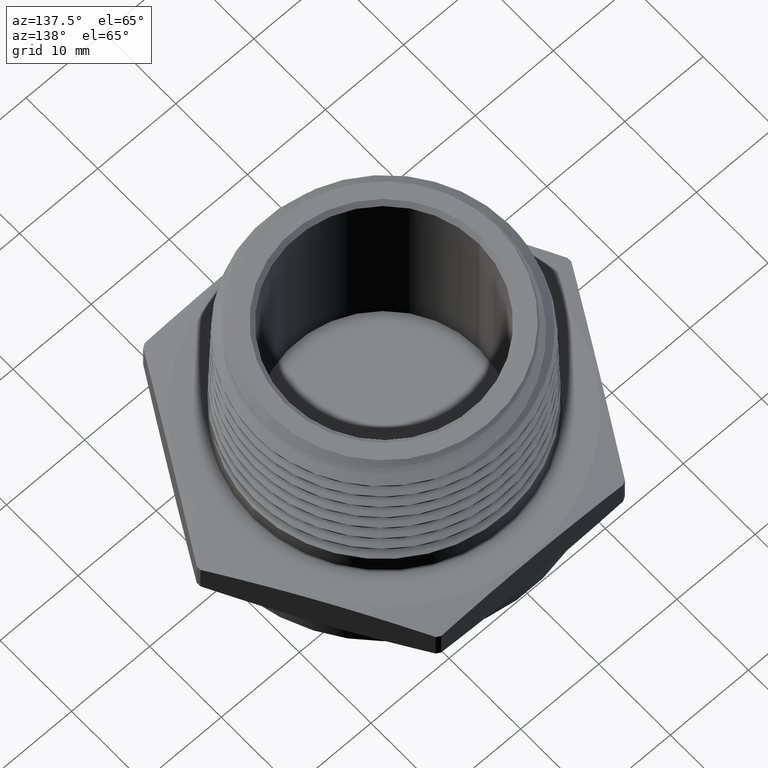
[diagram: clean part render]
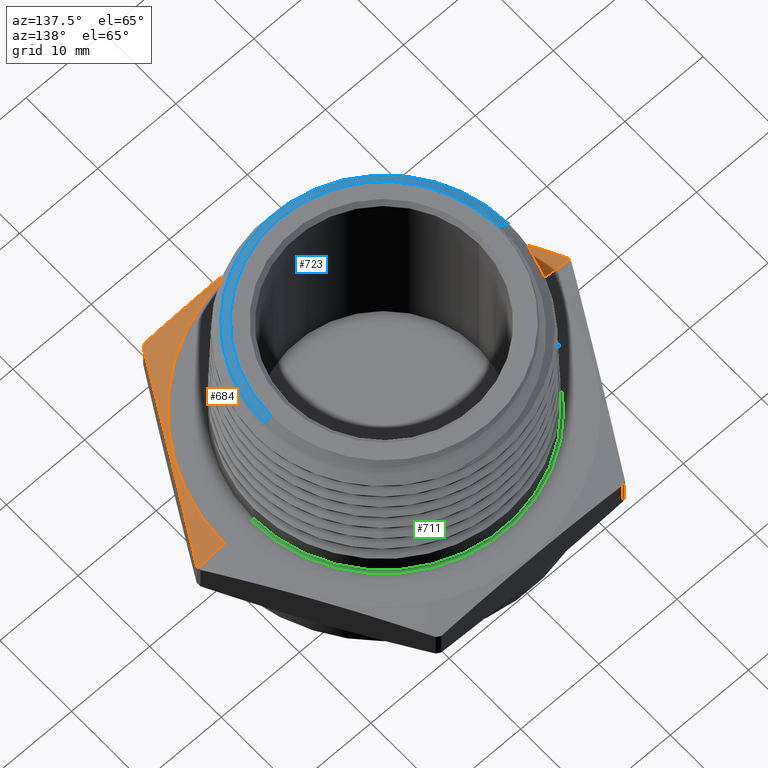
[diagram: same view with three faces highlighted in distinct colors, each labeled with its STEP entity id]
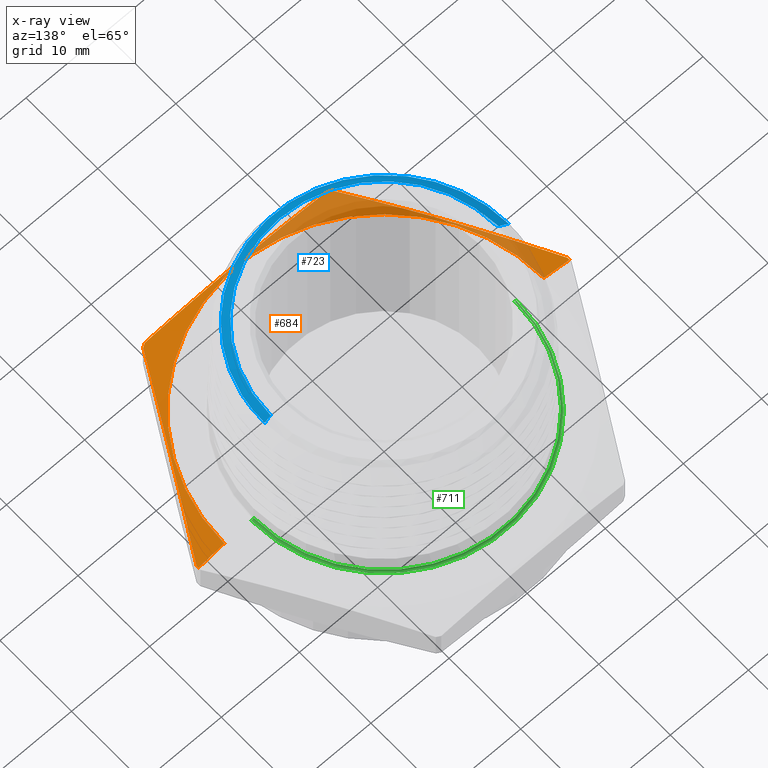
[diagram: x-ray of the same camera — body ghosted, the three highlighted faces saturated]
A machine part, auxiliary view with three faces highlighted in distinct colors.
The next image is the same camera in x-ray (body ghosted, the three faces saturated) — at least one of them is partly hidden behind the body in this view.
Their STEP definitions:

[orange] entity #684 — the highlighted conical surface has half-angle 78 deg.
#684 = ADVANCED_FACE ( 'NONE', ( #4577 ), #4584, .T. ) ;
#786 = EDGE_CURVE ( 'NONE', #1581, #1673, #6011, .T. ) ;
#800 = EDGE_CURVE ( 'NONE', #1583, #1581, #6027, .T. ) ;
#887 = EDGE_CURVE ( 'NONE', #1628, #1673, #6104, .T. ) ;
#898 = EDGE_CURVE ( 'NONE', #2399, #2366, #5932, .T. ) ;
#899 = EDGE_CURVE ( 'NONE', #2362, #1578, #5933, .T. ) ;
#900 = EDGE_CURVE ( 'NONE', #2365, #1628, #5934, .T. ) ;
#907 = EDGE_CURVE ( 'NONE', #2389, #2399, #6123, .T. ) ;
#910 = EDGE_CURVE ( 'NONE', #2366, #2362, #6128, .T. ) ;
#929 = AXIS2_PLACEMENT_3D ( 'NONE', #6619, #6639, #6666 ) ;
#999 = AXIS2_PLACEMENT_3D ( 'NONE', #5837, #5838, #5839 ) ;
#1393 = CARTESIAN_POINT ( 'NONE',  ( -0.4584226893032063400, -0.8149999999999997200, 0.1723504429143089300 ) ) ;
#1396 = CARTESIAN_POINT ( 'NONE',  ( -0.8049999999999998300, 0.0000000000000000000, 0.2000000000000000100 ) ) ;
#1398 = CARTESIAN_POINT ( 'NONE',  ( 0.8049999999999998300, 9.858406733136191200E-017, 0.1999999999999998200 ) ) ;
#1409 = CARTESIAN_POINT ( 'NONE',  ( 0.8049999999999998300, 9.858406733136191200E-017, 0.1999999999999998200 ) ) ;
#1417 = CARTESIAN_POINT ( 'NONE',  ( -0.9350220487359204300, -0.01049430539224296300, 0.1723504429143089500 ) ) ;
#1431 = CARTESIAN_POINT ( 'NONE',  ( -0.9350809387790897100, 0.0000000000000000000, 0.1723504429143089500 ) ) ;
#1433 = DIRECTION ( 'NONE',  ( 0.9781476007338069100, 1.197885328332319900E-016, -0.2079116908177528500 ) ) ;
#1442 = CARTESIAN_POINT ( 'NONE',  ( 0.4584226893032063400, -0.8149999999999997200, 0.1723504429143087900 ) ) ;
#1445 = CARTESIAN_POINT ( 'NONE',  ( -0.4765993594327140900, -0.8045056946077573400, 0.1723504429143089300 ) ) ;
#1446 = CARTESIAN_POINT ( 'NONE',  ( 0.4765993594327142000, -0.8045056946077573400, 0.1723504429143087900 ) ) ;
#1466 = CARTESIAN_POINT ( 'NONE',  ( 0.9350809387790897100, 1.145143878619514100E-016, 0.1723504429143087600 ) ) ;
#1476 = CARTESIAN_POINT ( 'NONE',  ( 0.9350220487359204300, -0.01049430539224262100, 0.1723504429143087600 ) ) ;
#1512 = CARTESIAN_POINT ( 'NONE',  ( 2.162974873910929900E-017, 0.0000000000000000000, 0.1723504429143088700 ) ) ;
#1513 = DIRECTION ( 'NONE',  ( -1.254986547952384500E-016, -0.0000000000000000000, -1.000000000000000000 ) ) ;
#1514 = DIRECTION ( 'NONE',  ( -1.000000000000000000, 0.0000000000000000000, 1.095566121753788100E-016 ) ) ;
#1578 = VERTEX_POINT ( 'NONE', #1393 ) ;
#1581 = VERTEX_POINT ( 'NONE', #1396 ) ;
#1583 = VERTEX_POINT ( 'NONE', #1398 ) ;
#1628 = VERTEX_POINT ( 'NONE', #1417 ) ;
#1673 = VERTEX_POINT ( 'NONE', #1431 ) ;
#2308 = AXIS2_PLACEMENT_3D ( 'NONE', #3139, #3140, #3141 ) ;
#2316 = AXIS2_PLACEMENT_3D ( 'NONE', #3232, #3233, #3234 ) ;
#2317 = AXIS2_PLACEMENT_3D ( 'NONE', #3240, #3241, #3242 ) ;
#2329 = AXIS2_PLACEMENT_3D ( 'NONE', #1512, #1513, #1514 ) ;
#2345 = EDGE_CURVE ( 'NONE', #1583, #2389, #6161, .T. ) ;
#2362 = VERTEX_POINT ( 'NONE', #1442 ) ;
#2365 = VERTEX_POINT ( 'NONE', #1445 ) ;
#2366 = VERTEX_POINT ( 'NONE', #1446 ) ;
#2389 = VERTEX_POINT ( 'NONE', #1466 ) ;
#2399 = VERTEX_POINT ( 'NONE', #1476 ) ;
#3139 = CARTESIAN_POINT ( 'NONE',  ( 2.162974873910929900E-017, 0.0000000000000000000, 0.1723504429143088700 ) ) ;
#3140 = DIRECTION ( 'NONE',  ( -1.254986547952384500E-016, -0.0000000000000000000, -1.000000000000000000 ) ) ;
#3141 = DIRECTION ( 'NONE',  ( -1.000000000000000000, 0.0000000000000000000, 1.095566121753788100E-016 ) ) ;
#3173 = CARTESIAN_POINT ( 'NONE',  ( 0.8586182671853862500, -0.1428295369281616700, 0.1867569098631995100 ) ) ;
#3181 = CARTESIAN_POINT ( 'NONE',  ( 0.3821825396903712500, -0.8149999999999997200, 0.1802951000004681100 ) ) ;
#3190 = CARTESIAN_POINT ( 'NONE',  ( 0.3059085874836962000, -0.8149999999999997200, 0.1867333030325142000 ) ) ;
#3191 = CARTESIAN_POINT ( 'NONE',  ( 0.8968201579606535100, -0.07666192116020210900, 0.1803121513787767600 ) ) ;
#3192 = CARTESIAN_POINT ( 'NONE',  ( 0.9350220487359204300, -0.01049430539224262100, 0.1723504429143087600 ) ) ;
#3193 = CARTESIAN_POINT ( 'NONE',  ( 0.7822144856348515200, -0.2751647684640808300, 0.1955505306662885200 ) ) ;
#3194 = CARTESIAN_POINT ( 'NONE',  ( 0.7058107040843174500, -0.4074999999999997000, 0.2001983381003107400 ) ) ;
#3195 = CARTESIAN_POINT ( 'NONE',  ( 0.6294069225337828300, -0.5398352315359189500, 0.1955505306662886400 ) ) ;
#3196 = CARTESIAN_POINT ( 'NONE',  ( 0.5530031409832486500, -0.6721704630718381400, 0.1867569098631996800 ) ) ;
#3197 = CARTESIAN_POINT ( 'NONE',  ( 0.5148012502079814000, -0.7383380788397977400, 0.1803121513787768200 ) ) ;
#3198 = CARTESIAN_POINT ( 'NONE',  ( 0.4765993594327142000, -0.8045056946077573400, 0.1723504429143087900 ) ) ;
#3199 = CARTESIAN_POINT ( 'NONE',  ( -0.5148012502079814000, -0.7383380788397977400, 0.1803121513787769900 ) ) ;
#3200 = CARTESIAN_POINT ( 'NONE',  ( 0.4584226893032063400, -0.8149999999999997200, 0.1723504429143087900 ) ) ;
#3201 = CARTESIAN_POINT ( 'NONE',  ( -0.5530031409832485400, -0.6721704630718383600, 0.1867569098631996800 ) ) ;
#3202 = CARTESIAN_POINT ( 'NONE',  ( 0.1532691551096953300, -0.8149999999999996100, 0.1955306532691248300 ) ) ;
#3203 = CARTESIAN_POINT ( 'NONE',  ( 0.07690311260575342900, -0.8149999999999996100, 0.1978647392526785800 ) ) ;
#3204 = CARTESIAN_POINT ( 'NONE',  ( -0.07593328554225364800, -0.8149999999999995000, 0.1978840681878027100 ) ) ;
#3205 = CARTESIAN_POINT ( 'NONE',  ( -0.1524036573554993200, -0.8149999999999999500, 0.1955685905400196500 ) ) ;
#3206 = CARTESIAN_POINT ( 'NONE',  ( -0.3054378654914723400, -0.8149999999999996100, 0.1867722747430926900 ) ) ;
#3207 = CARTESIAN_POINT ( 'NONE',  ( -0.3820727360291162900, -0.8149999999999996100, 0.1803065421663073400 ) ) ;
#3208 = CARTESIAN_POINT ( 'NONE',  ( -0.4584226893032063400, -0.8149999999999997200, 0.1723504429143089300 ) ) ;
#3210 = CARTESIAN_POINT ( 'NONE',  ( -0.4765993594327140900, -0.8045056946077573400, 0.1723504429143089300 ) ) ;
#3212 = CARTESIAN_POINT ( 'NONE',  ( -0.6294069225337829400, -0.5398352315359192800, 0.1955505306662888000 ) ) ;
#3213 = CARTESIAN_POINT ( 'NONE',  ( -0.7058107040843174500, -0.4075000000000003600, 0.2001983381003110100 ) ) ;
#3214 = CARTESIAN_POINT ( 'NONE',  ( -0.7822144856348517400, -0.2751647684640809400, 0.1955505306662887500 ) ) ;
#3215 = CARTESIAN_POINT ( 'NONE',  ( -0.8586182671853861400, -0.1428295369281619400, 0.1867569098631997600 ) ) ;
#3216 = CARTESIAN_POINT ( 'NONE',  ( -0.8968201579606531700, -0.07666192116020245600, 0.1803121513787769000 ) ) ;
#3217 = CARTESIAN_POINT ( 'NONE',  ( -0.9350220487359204300, -0.01049430539224296300, 0.1723504429143089500 ) ) ;
#3232 = CARTESIAN_POINT ( 'NONE',  ( 2.162974873910929900E-017, 0.0000000000000000000, 0.1723504429143088700 ) ) ;
#3233 = DIRECTION ( 'NONE',  ( -1.254986547952384500E-016, -0.0000000000000000000, -1.000000000000000000 ) ) ;
#3234 = DIRECTION ( 'NONE',  ( -1.000000000000000000, 0.0000000000000000000, 1.095566121753788100E-016 ) ) ;
#3240 = CARTESIAN_POINT ( 'NONE',  ( 2.162974873910929900E-017, 0.0000000000000000000, 0.1723504429143088700 ) ) ;
#3241 = DIRECTION ( 'NONE',  ( -1.254986547952384500E-016, -0.0000000000000000000, -1.000000000000000000 ) ) ;
#3242 = DIRECTION ( 'NONE',  ( -1.000000000000000000, 0.0000000000000000000, 1.095566121753788100E-016 ) ) ;
#4341 = EDGE_LOOP ( 'NONE', ( #4512, #4513, #4514, #4515, #4516, #4517, #4502, #4503, #4504, #4505 ) ) ;
#4502 = ORIENTED_EDGE ( 'NONE', *, *, #899, .F. ) ;
#4503 = ORIENTED_EDGE ( 'NONE', *, *, #910, .F. ) ;
#4504 = ORIENTED_EDGE ( 'NONE', *, *, #898, .F. ) ;
#4505 = ORIENTED_EDGE ( 'NONE', *, *, #907, .F. ) ;
#4512 = ORIENTED_EDGE ( 'NONE', *, *, #2345, .F. ) ;
#4513 = ORIENTED_EDGE ( 'NONE', *, *, #800, .T. ) ;
#4514 = ORIENTED_EDGE ( 'NONE', *, *, #786, .T. ) ;
#4515 = ORIENTED_EDGE ( 'NONE', *, *, #887, .F. ) ;
#4516 = ORIENTED_EDGE ( 'NONE', *, *, #900, .F. ) ;
#4517 = ORIENTED_EDGE ( 'NONE', *, *, #6430, .F. ) ;
#4577 = FACE_OUTER_BOUND ( 'NONE', #4341, .T. ) ;
#4584 = CONICAL_SURFACE ( 'NONE', #929, 0.8049999999999998300, 1.361356816555583800 ) ;
#5686 = DIRECTION ( 'NONE',  ( -0.9781476007338071300, 0.0000000000000000000, -0.2079116908177526300 ) ) ;
#5687 = CARTESIAN_POINT ( 'NONE',  ( -0.8049999999999998300, 0.0000000000000000000, 0.2000000000000000100 ) ) ;
#5837 = CARTESIAN_POINT ( 'NONE',  ( 2.509973095904768000E-017, 0.0000000000000000000, 0.1999999999999999300 ) ) ;
#5838 = DIRECTION ( 'NONE',  ( -1.254986547952384500E-016, -0.0000000000000000000, -1.000000000000000000 ) ) ;
#5839 = DIRECTION ( 'NONE',  ( -1.000000000000000000, 0.0000000000000000000, 1.272599997048570100E-016 ) ) ;
#5932 = B_SPLINE_CURVE_WITH_KNOTS ( 'NONE', 3,
 ( #3192, #3191, #3173, #3193, #3194, #3195, #3196, #3197, #3198 ),
 .UNSPECIFIED., .F., .F.,
 ( 4, 2, 1, 2, 4 ),
 ( 1.919160924749535500E-006, 0.005823887315075467300, 0.01164585546922618400, 0.01746782362337690300, 0.02328979177752761900 ),
 .UNSPECIFIED. ) ;
#5933 = B_SPLINE_CURVE_WITH_KNOTS ( 'NONE', 3,
 ( #3200, #3181, #3190, #3202, #3203, #3204, #3205, #3206, #3207, #3208 ),
 .UNSPECIFIED., .F., .F.,
 ( 4, 2, 2, 2, 4 ),
 ( 0.04548648765936419400, 0.05132590599875511100, 0.05716532433814602900, 0.06300474267753694600, 0.06884416101692786300 ),
 .UNSPECIFIED. ) ;
#5934 = B_SPLINE_CURVE_WITH_KNOTS ( 'NONE', 3,
 ( #3210, #3199, #3201, #3212, #3213, #3214, #3215, #3216, #3217 ),
 .UNSPECIFIED., .F., .F.,
 ( 4, 2, 1, 2, 4 ),
 ( 1.919160924773306300E-006, 0.005823887315075492400, 0.01164585546922621200, 0.01746782362337692700, 0.02328979177752764000 ),
 .UNSPECIFIED. ) ;
#6011 = LINE ( 'NONE', #5687, #6014 ) ;
#6014 = VECTOR ( 'NONE', #5686, 39.37007874015748900 ) ;
#6027 = CIRCLE ( 'NONE', #999, 0.8049999999999998300 ) ;
#6104 = CIRCLE ( 'NONE', #2308, 0.9350809387790897100 ) ;
#6123 = CIRCLE ( 'NONE', #2316, 0.9350809387790897100 ) ;
#6128 = CIRCLE ( 'NONE', #2317, 0.9350809387790897100 ) ;
#6157 = CIRCLE ( 'NONE', #2329, 0.9350809387790897100 ) ;
#6160 = VECTOR ( 'NONE', #1433, 39.37007874015748100 ) ;
#6161 = LINE ( 'NONE', #1409, #6160 ) ;
#6430 = EDGE_CURVE ( 'NONE', #1578, #2365, #6157, .T. ) ;
#6619 = CARTESIAN_POINT ( 'NONE',  ( 2.509973095904768000E-017, 0.0000000000000000000, 0.1999999999999999300 ) ) ;
#6639 = DIRECTION ( 'NONE',  ( -1.254986547952384500E-016, -0.0000000000000000000, -1.000000000000000000 ) ) ;
#6666 = DIRECTION ( 'NONE',  ( -1.000000000000000000, 0.0000000000000000000, 1.272599997048570100E-016 ) ) ;

[blue] entity #723 — the highlighted conical surface has half-angle 45 deg.
#723 = ADVANCED_FACE ( 'NONE', ( #5961 ), #5966, .T. ) ;
#787 = EDGE_CURVE ( 'NONE', #1595, #2393, #6012, .T. ) ;
#792 = EDGE_CURVE ( 'NONE', #2393, #1648, #6018, .T. ) ;
#838 = EDGE_CURVE ( 'NONE', #2359, #2358, #6069, .T. ) ;
#858 = EDGE_CURVE ( 'NONE', #1595, #1579, #6083, .T. ) ;
#865 = EDGE_CURVE ( 'NONE', #1648, #1619, #5917, .T. ) ;
#869 = EDGE_CURVE ( 'NONE', #2358, #1579, #5919, .T. ) ;
#882 = EDGE_CURVE ( 'NONE', #1619, #2359, #5927, .T. ) ;
#965 = AXIS2_PLACEMENT_3D ( 'NONE', #1805, #1806, #1804 ) ;
#994 = AXIS2_PLACEMENT_3D ( 'NONE', #5695, #5696, #5697 ) ;
#1394 = CARTESIAN_POINT ( 'NONE',  ( 0.6003489249177894600, -6.949758934786900800E-016, 0.9616510750822108200 ) ) ;
#1410 = CARTESIAN_POINT ( 'NONE',  ( 0.5719999999999999500, 7.351925070738972600E-017, 0.9900000000000001000 ) ) ;
#1412 = CARTESIAN_POINT ( 'NONE',  ( -0.5655597257416159500, -0.09229614794504099900, 0.9889424822193903000 ) ) ;
#1428 = CARTESIAN_POINT ( 'NONE',  ( -0.5731157824945870600, -6.402768735150616600E-017, 0.9888842175054131100 ) ) ;
#1438 = CARTESIAN_POINT ( 'NONE',  ( -0.6283225450993634700, 4.889100257645360200E-013, 0.9336774549006378000 ) ) ;
#1439 = CARTESIAN_POINT ( 'NONE',  ( -0.5782752292204643700, 3.274842165956694300E-013, 0.9837247707795356800 ) ) ;
#1470 = CARTESIAN_POINT ( 'NONE',  ( -0.5719999999999999500, 0.0000000000000000000, 0.9900000000000001000 ) ) ;
#1579 = VERTEX_POINT ( 'NONE', #1394 ) ;
#1595 = VERTEX_POINT ( 'NONE', #1410 ) ;
#1619 = VERTEX_POINT ( 'NONE', #1412 ) ;
#1648 = VERTEX_POINT ( 'NONE', #1428 ) ;
#1804 = DIRECTION ( 'NONE',  ( -1.000000000000000000, 0.0000000000000000000, 0.0000000000000000000 ) ) ;
#1805 = CARTESIAN_POINT ( 'NONE',  ( 0.0000000000000000000, 0.0000000000000000000, 0.9027971720943880300 ) ) ;
#1806 = DIRECTION ( 'NONE',  ( -0.0000000000000000000, -0.0000000000000000000, -1.000000000000000000 ) ) ;
#1988 = DIRECTION ( 'NONE',  ( -0.7071067811865516800, 0.0000000000000000000, -0.7071067811865433500 ) ) ;
#2358 = VERTEX_POINT ( 'NONE', #1438 ) ;
#2359 = VERTEX_POINT ( 'NONE', #1439 ) ;
#2393 = VERTEX_POINT ( 'NONE', #1470 ) ;
#2562 = CARTESIAN_POINT ( 'NONE',  ( 0.6592028279056131300, 8.072906331834926900E-017, 0.9027971720943880300 ) ) ;
#2564 = DIRECTION ( 'NONE',  ( 0.7071067811865516800, 8.659560562354983400E-017, -0.7071067811865433500 ) ) ;
#2702 = CARTESIAN_POINT ( 'NONE',  ( -0.5730966348480071000, -0.03089783283064754000, 0.9889033651519929500 ) ) ;
#2704 = CARTESIAN_POINT ( 'NONE',  ( -0.5705498541855827900, -0.06177772625082884200, 0.9889490450932203500 ) ) ;
#2708 = CARTESIAN_POINT ( 'NONE',  ( -0.5731157824945870600, -6.402768735150616600E-017, 0.9888842175054131100 ) ) ;
#2709 = CARTESIAN_POINT ( 'NONE',  ( -0.5655597257416159500, -0.09229614794504099900, 0.9889424822193903000 ) ) ;
#2763 = CARTESIAN_POINT ( 'NONE',  ( -0.6283225450993634700, 4.889100257645360200E-013, 0.9336774549006378000 ) ) ;
#2764 = CARTESIAN_POINT ( 'NONE',  ( -0.6277517758621208300, -0.04027582084507674200, 0.9342482241379113100 ) ) ;
#2769 = CARTESIAN_POINT ( 'NONE',  ( -0.6233480830329850600, -0.08014557814971956500, 0.9348149424751737200 ) ) ;
#2770 = CARTESIAN_POINT ( 'NONE',  ( -0.6109628710005069500, -0.1393376951686519600, 0.9356739183522404500 ) ) ;
#2771 = CARTESIAN_POINT ( 'NONE',  ( -0.6058293096666554900, -0.1590543596057914200, 0.9359641750060462300 ) ) ;
#2772 = CARTESIAN_POINT ( 'NONE',  ( -0.5937880551024561400, -0.1975470601095226400, 0.9365381644293960800 ) ) ;
#2773 = CARTESIAN_POINT ( 'NONE',  ( -0.5868766730029015800, -0.2163859120718263100, 0.9368227733415664900 ) ) ;
#2774 = CARTESIAN_POINT ( 'NONE',  ( -0.5635223193491110100, -0.2717036580411116300, 0.9376778298871606400 ) ) ;
#2775 = CARTESIAN_POINT ( 'NONE',  ( -0.5444854407597095000, -0.3069957986820049400, 0.9382480025577218900 ) ) ;
#2776 = CARTESIAN_POINT ( 'NONE',  ( -0.4991859951343103300, -0.3742739245220694200, 0.9394059372103544800 ) ) ;
#2777 = CARTESIAN_POINT ( 'NONE',  ( -0.4735669051513973200, -0.4052717388882183200, 0.9399795319078250200 ) ) ;
#2778 = CARTESIAN_POINT ( 'NONE',  ( -0.4310758478532629200, -0.4476774968469127100, 0.9408388337412817400 ) ) ;
#2779 = CARTESIAN_POINT ( 'NONE',  ( -0.4162177585189426600, -0.4611418698714350200, 0.9411268315815687300 ) ) ;
#2780 = CARTESIAN_POINT ( 'NONE',  ( -0.3850861814523969800, -0.4867031851660435500, 0.9417050683721123200 ) ) ;
#2781 = CARTESIAN_POINT ( 'NONE',  ( -0.3687243612530317600, -0.4988518635010457100, 0.9419966363922811500 ) ) ;
#2782 = CARTESIAN_POINT ( 'NONE',  ( -0.3184373044608903000, -0.5324963997328863200, 0.9428650624131593700 ) ) ;
#2783 = CARTESIAN_POINT ( 'NONE',  ( -0.2831535357971129400, -0.5514069717100014100, 0.9434394358872902900 ) ) ;
#2784 = CARTESIAN_POINT ( 'NONE',  ( -0.2276288004168912400, -0.5745728427568143100, 0.9443053165515038500 ) ) ;
#2785 = CARTESIAN_POINT ( 'NONE',  ( -0.2086836797567931100, -0.5814206918121095400, 0.9445962341854592400 ) ) ;
#2786 = CARTESIAN_POINT ( 'NONE',  ( -0.1698892500044497400, -0.5933072999798222300, 0.9451820199975604600 ) ) ;
#2787 = CARTESIAN_POINT ( 'NONE',  ( -0.1503206900692913800, -0.5982578054319714900, 0.9454724724592916700 ) ) ;
#2788 = CARTESIAN_POINT ( 'NONE',  ( -0.09131615818067703700, -0.6101697598103217300, 0.9463412480107558100 ) ) ;
#2789 = CARTESIAN_POINT ( 'NONE',  ( -0.05149637765103051700, -0.6142455323130724400, 0.9469188464212262600 ) ) ;
#2790 = CARTESIAN_POINT ( 'NONE',  ( 0.008969497855882593900, -0.6144711064270754800, 0.9477939790444799300 ) ) ;
#2791 = CARTESIAN_POINT ( 'NONE',  ( 0.02933292363918173600, -0.6135398422460856000, 0.9480900178801532400 ) ) ;
#2792 = CARTESIAN_POINT ( 'NONE',  ( 0.06945847677378355600, -0.6097120950829829600, 0.9486752682305790200 ) ) ;
#2793 = CARTESIAN_POINT ( 'NONE',  ( 0.08930889642799985700, -0.6068242229662982300, 0.9489655639770607800 ) ) ;
#2794 = CARTESIAN_POINT ( 'NONE',  ( 0.1482344998597525900, -0.5952914823425040600, 0.9498370897720905800 ) ) ;
#2795 = CARTESIAN_POINT ( 'NONE',  ( 0.1867641360576805200, -0.5837751543597344800, 0.9504205957239940700 ) ) ;
#2796 = CARTESIAN_POINT ( 'NONE',  ( 0.2617832771830152500, -0.5529020988062745000, 0.9516015158549675500 ) ) ;
#2797 = CARTESIAN_POINT ( 'NONE',  ( 0.2971599183001777400, -0.5340163965697467500, 0.9521850222044372400 ) ) ;
#2798 = CARTESIAN_POINT ( 'NONE',  ( 0.3471400199448005400, -0.5006996237951694100, 0.9530619889598989100 ) ) ;
#2799 = CARTESIAN_POINT ( 'NONE',  ( 0.3632812365888978800, -0.4887551486029178000, 0.9533561508519832200 ) ) ;
#2800 = CARTESIAN_POINT ( 'NONE',  ( 0.3945002952906038200, -0.4631467876590605300, 0.9539474423492853000 ) ) ;
#2801 = CARTESIAN_POINT ( 'NONE',  ( 0.4095851848783071400, -0.4494567421635250500, 0.9542447393142933200 ) ) ;
#2802 = CARTESIAN_POINT ( 'NONE',  ( 0.4522186291113642900, -0.4067070071224613300, 0.9551288779894944200 ) ) ;
#2803 = CARTESIAN_POINT ( 'NONE',  ( 0.4775363340974048700, -0.3757079295430508800, 0.9557143765499338500 ) ) ;
#2804 = CARTESIAN_POINT ( 'NONE',  ( 0.5108653987642053400, -0.3254682437435644800, 0.9565999273501771800 ) ) ;
#2805 = CARTESIAN_POINT ( 'NONE',  ( 0.5212408773791902300, -0.3079999082411368200, 0.9568993385211102000 ) ) ;
#2806 = CARTESIAN_POINT ( 'NONE',  ( 0.5401240285679785900, -0.2722155197896826100, 0.9574951859203406600 ) ) ;
#2807 = CARTESIAN_POINT ( 'NONE',  ( 0.5486010273752680600, -0.2539835445915213400, 0.9577902505720044000 ) ) ;
#2808 = CARTESIAN_POINT ( 'NONE',  ( 0.5712131112562385300, -0.1982947693048976200, 0.9586758693884429600 ) ) ;
#2809 = CARTESIAN_POINT ( 'NONE',  ( 0.5825591086343430100, -0.1598555971027393300, 0.9592651233446652900 ) ) ;
#2810 = CARTESIAN_POINT ( 'NONE',  ( 0.5937895112420824600, -0.1001582436748347000, 0.9601630132861220800 ) ) ;
#2811 = CARTESIAN_POINT ( 'NONE',  ( 0.5965234745108145600, -0.08005636094698556600, 0.9604637476984322400 ) ) ;
#2812 = CARTESIAN_POINT ( 'NONE',  ( 0.5999430441952849900, -0.04002742803732163600, 0.9610587070802371100 ) ) ;
#2813 = CARTESIAN_POINT ( 'NONE',  ( 0.6006457612034900000, -0.02001344833519148900, 0.9613542387965102700 ) ) ;
#2814 = CARTESIAN_POINT ( 'NONE',  ( 0.6003489249177894600, -6.949758934786900800E-016, 0.9616510750822108200 ) ) ;
#3102 = CARTESIAN_POINT ( 'NONE',  ( -0.5723509295740140100, -0.06172517563396573400, 0.9871798708326928700 ) ) ;
#3103 = CARTESIAN_POINT ( 'NONE',  ( -0.5655597257416159500, -0.09229614794504099900, 0.9889424822193903000 ) ) ;
#3110 = CARTESIAN_POINT ( 'NONE',  ( -0.5765482343063121900, -0.03095631150653031100, 0.9854517656937054100 ) ) ;
#3111 = CARTESIAN_POINT ( 'NONE',  ( -0.5782752292204643700, 3.274842165956694300E-013, 0.9837247707795356800 ) ) ;
#4355 = EDGE_LOOP ( 'NONE', ( #4448, #4451, #4450, #4453, #4452, #4455, #4454 ) ) ;
#4448 = ORIENTED_EDGE ( 'NONE', *, *, #858, .F. ) ;
#4450 = ORIENTED_EDGE ( 'NONE', *, *, #792, .T. ) ;
#4451 = ORIENTED_EDGE ( 'NONE', *, *, #787, .T. ) ;
#4452 = ORIENTED_EDGE ( 'NONE', *, *, #882, .T. ) ;
#4453 = ORIENTED_EDGE ( 'NONE', *, *, #865, .T. ) ;
#4454 = ORIENTED_EDGE ( 'NONE', *, *, #869, .T. ) ;
#4455 = ORIENTED_EDGE ( 'NONE', *, *, #838, .T. ) ;
#4906 = CARTESIAN_POINT ( 'NONE',  ( -0.6592028279056131300, 0.0000000000000000000, 0.9027971720943880300 ) ) ;
#5695 = CARTESIAN_POINT ( 'NONE',  ( 0.0000000000000000000, 0.0000000000000000000, 0.9900000000000001000 ) ) ;
#5696 = DIRECTION ( 'NONE',  ( -0.0000000000000000000, -0.0000000000000000000, -1.000000000000000000 ) ) ;
#5697 = DIRECTION ( 'NONE',  ( -1.000000000000000000, 0.0000000000000000000, 0.0000000000000000000 ) ) ;
#5800 = CARTESIAN_POINT ( 'NONE',  ( -0.6592028279056131300, 0.0000000000000000000, 0.9027971720943880300 ) ) ;
#5801 = DIRECTION ( 'NONE',  ( -0.7071067811865516800, 0.0000000000000000000, -0.7071067811865433500 ) ) ;
#5917 = B_SPLINE_CURVE_WITH_KNOTS ( 'NONE', 3,
 ( #2708, #2702, #2704, #2709 ),
 .UNSPECIFIED., .F., .F.,
 ( 4, 4 ),
 ( 0.001243514361797862100, 0.003600094283229087600 ),
 .UNSPECIFIED. ) ;
#5919 = B_SPLINE_CURVE_WITH_KNOTS ( 'NONE', 3,
 ( #2763, #2764, #2769, #2770, #2771, #2772, #2773, #2774, #2775, #2776, #2777, #2778, #2779, #2780, #2781, #2782, #2783, #2784, #2785, #2786, #2787, #2788, #2789, #2790, #2791, #2792, #2793, #2794, #2795, #2796, #2797, #2798, #2799, #2800, #2801, #2802, #2803, #2804, #2805, #2806, #2807, #2808, #2809, #2810, #2811, #2812, #2813, #2814 ),
 .UNSPECIFIED., .F., .F.,
 ( 4, 2, 2, 2, 2, 2, 2, 2, 2, 2, 2, 2, 2, 2, 2, 2, 2, 2, 2, 2, 2, 2, 2, 4 ),
 ( 0.02647951359839826800, 0.02954731246858421900, 0.03108121190367719300, 0.03261511133877017400, 0.03568291020895612100, 0.03875070907914206200, 0.04028460851423503600, 0.04181850794932801000, 0.04488630681951395800, 0.04642020625460693100, 0.04795410568969990500, 0.05102190455988585300, 0.05255580399497882000, 0.05408970343007180000, 0.05715750230025774800, 0.06022530117044369600, 0.06175920060553666300, 0.06329310004062963000, 0.06636089891081557700, 0.06789479834590854400, 0.06942869778100152500, 0.07249649665118745900, 0.07403039608628042600, 0.07556429552137340600 ),
 .UNSPECIFIED. ) ;
#5927 = B_SPLINE_CURVE_WITH_KNOTS ( 'NONE', 3,
 ( #3103, #3102, #3110, #3111 ),
 .UNSPECIFIED., .F., .F.,
 ( 4, 4 ),
 ( 0.0000000000000000000, 0.002365730230864646800 ),
 .UNSPECIFIED. ) ;
#5961 = FACE_OUTER_BOUND ( 'NONE', #4355, .T. ) ;
#5966 = CONICAL_SURFACE ( 'NONE', #965, 0.6592028279056131300, 0.7853981633974541600 ) ;
#6012 = CIRCLE ( 'NONE', #994, 0.5719999999999999500 ) ;
#6016 = VECTOR ( 'NONE', #5801, 39.37007874015748100 ) ;
#6018 = LINE ( 'NONE', #5800, #6016 ) ;
#6066 = VECTOR ( 'NONE', #1988, 39.37007874015748100 ) ;
#6069 = LINE ( 'NONE', #4906, #6066 ) ;
#6083 = LINE ( 'NONE', #2562, #6084 ) ;
#6084 = VECTOR ( 'NONE', #2564, 39.37007874015748100 ) ;

[green] entity #711 — the highlighted toroidal blend (fillet) surface has major radius 16.9672 mm and minor (blend) radius 0.254 mm.
#711 = ADVANCED_FACE ( 'NONE', ( #4621 ), #4620, .F. ) ;
#806 = EDGE_CURVE ( 'NONE', #1568, #1580, #6034, .T. ) ;
#816 = EDGE_CURVE ( 'NONE', #1574, #1580, #6044, .T. ) ;
#819 = EDGE_CURVE ( 'NONE', #1571, #1568, #6048, .T. ) ;
#868 = EDGE_CURVE ( 'NONE', #1574, #1571, #6081, .T. ) ;
#952 = AXIS2_PLACEMENT_3D ( 'NONE', #1768, #1767, #1770 ) ;
#1002 = AXIS2_PLACEMENT_3D ( 'NONE', #5859, #5860, #5861 ) ;
#1008 = AXIS2_PLACEMENT_3D ( 'NONE', #4659, #4660, #4661 ) ;
#1010 = AXIS2_PLACEMENT_3D ( 'NONE', #4665, #4666, #4667 ) ;
#1373 = CARTESIAN_POINT ( 'NONE',  ( -0.6580000000000000300, 0.0000000000000000000, 0.2099999999999999400 ) ) ;
#1375 = CARTESIAN_POINT ( 'NONE',  ( -0.6680000000000000400, 8.180640618304318600E-017, 0.1999999999999999800 ) ) ;
#1389 = CARTESIAN_POINT ( 'NONE',  ( 0.6580000000000000300, 8.058175938389584700E-017, 0.2099999999999999400 ) ) ;
#1395 = CARTESIAN_POINT ( 'NONE',  ( 0.6680000000000000400, 0.0000000000000000000, 0.1999999999999999800 ) ) ;
#1556 = EDGE_LOOP ( 'NONE', ( #1631, #1608, #1671, #1561 ) ) ;
#1561 = ORIENTED_EDGE ( 'NONE', *, *, #806, .F. ) ;
#1568 = VERTEX_POINT ( 'NONE', #1375 ) ;
#1571 = VERTEX_POINT ( 'NONE', #1373 ) ;
#1574 = VERTEX_POINT ( 'NONE', #1389 ) ;
#1580 = VERTEX_POINT ( 'NONE', #1395 ) ;
#1608 = ORIENTED_EDGE ( 'NONE', *, *, #868, .F. ) ;
#1631 = ORIENTED_EDGE ( 'NONE', *, *, #819, .F. ) ;
#1671 = ORIENTED_EDGE ( 'NONE', *, *, #816, .T. ) ;
#1767 = DIRECTION ( 'NONE',  ( -0.0000000000000000000, 0.0000000000000000000, 1.000000000000000000 ) ) ;
#1768 = CARTESIAN_POINT ( 'NONE',  ( 0.0000000000000000000, 0.0000000000000000000, 0.2099999999999999400 ) ) ;
#1770 = DIRECTION ( 'NONE',  ( 1.000000000000000000, 0.0000000000000000000, 0.0000000000000000000 ) ) ;
#2305 = AXIS2_PLACEMENT_3D ( 'NONE', #2765, #2766, #2767 ) ;
#2765 = CARTESIAN_POINT ( 'NONE',  ( 0.0000000000000000000, 0.0000000000000000000, 0.2099999999999999400 ) ) ;
#2766 = DIRECTION ( 'NONE',  ( -0.0000000000000000000, 0.0000000000000000000, 1.000000000000000000 ) ) ;
#2767 = DIRECTION ( 'NONE',  ( 1.000000000000000000, 0.0000000000000000000, 0.0000000000000000000 ) ) ;
#4620 = TOROIDAL_SURFACE ( 'NONE', #952, 0.6680000000000000400, 0.01000000000000000000 ) ;
#4621 = FACE_OUTER_BOUND ( 'NONE', #1556, .T. ) ;
#4659 = CARTESIAN_POINT ( 'NONE',  ( 0.6680000000000000400, 0.0000000000000000000, 0.2099999999999999400 ) ) ;
#4660 = DIRECTION ( 'NONE',  ( 0.0000000000000000000, -1.000000000000000000, 0.0000000000000000000 ) ) ;
#4661 = DIRECTION ( 'NONE',  ( 0.0000000000000000000, 0.0000000000000000000, -1.000000000000000000 ) ) ;
#4665 = CARTESIAN_POINT ( 'NONE',  ( -0.6680000000000000400, 8.180640618304319800E-017, 0.2099999999999999400 ) ) ;
#4666 = DIRECTION ( 'NONE',  ( 1.224646799147353200E-016, 1.000000000000000000, 0.0000000000000000000 ) ) ;
#4667 = DIRECTION ( 'NONE',  ( -1.000000000000000000, 1.224646799147354400E-016, 0.0000000000000000000 ) ) ;
#5859 = CARTESIAN_POINT ( 'NONE',  ( 0.0000000000000000000, 0.0000000000000000000, 0.2000000000000000100 ) ) ;
#5860 = DIRECTION ( 'NONE',  ( 0.0000000000000000000, -0.0000000000000000000, -1.000000000000000000 ) ) ;
#5861 = DIRECTION ( 'NONE',  ( 1.000000000000000000, 0.0000000000000000000, 0.0000000000000000000 ) ) ;
#6034 = CIRCLE ( 'NONE', #1002, 0.6680000000000000400 ) ;
#6044 = CIRCLE ( 'NONE', #1008, 0.009999999999999995000 ) ;
#6048 = CIRCLE ( 'NONE', #1010, 0.01000000000000003000 ) ;
#6081 = CIRCLE ( 'NONE', #2305, 0.6580000000000000300 ) ;